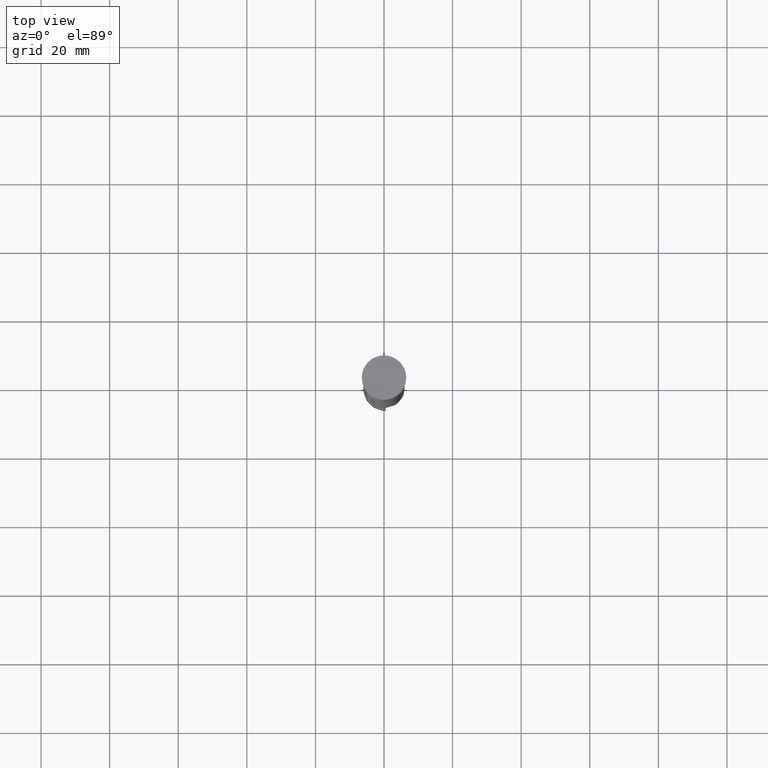
[diagram: clean part render]
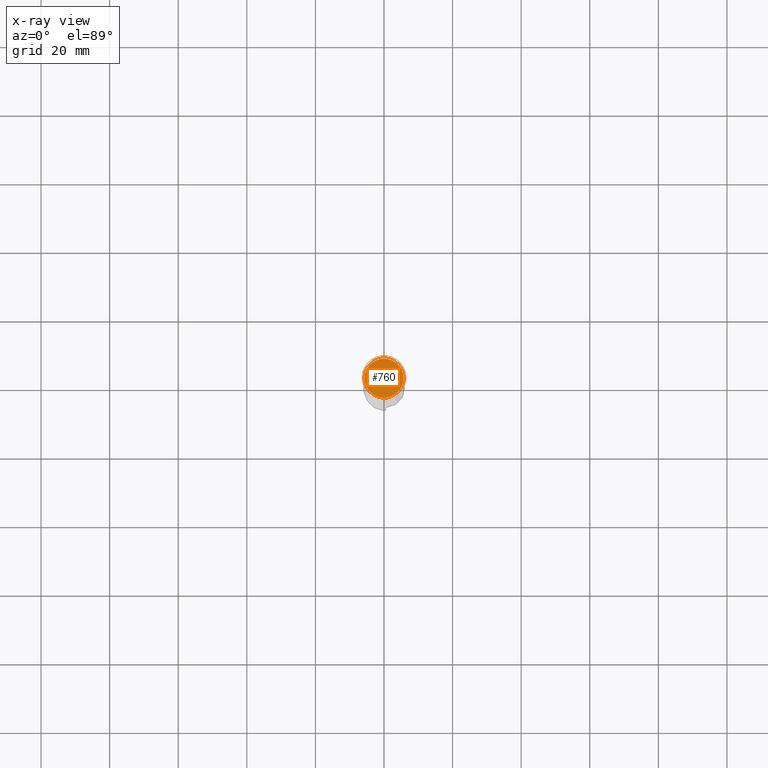
[diagram: x-ray — body ghosted, one internal face saturated and labeled with its STEP entity id]
A machine part, top view, then the same camera in x-ray: the body is ghosted and one INTERNAL B-rep face — a face not visible from any outside direction — is saturated and labeled: STEP entity #760.
In plain terms, the highlighted planar face has unit normal (0, 0, -1).
Its self-contained STEP definition (entity closure, byte-faithful):
#6 = DIRECTION ( 'NONE',  ( -0.000000000000000000, -0.000000000000000000, 1.000000000000000000 ) ) ;
#41 = DIRECTION ( 'NONE',  ( -1.000000000000000000, 0.000000000000000000, 0.000000000000000000 ) ) ;
#60 = CARTESIAN_POINT ( 'NONE',  ( -5.700000000000002842, 0.000000000000000000, -10.50000000000000178 ) ) ;
#132 = CARTESIAN_POINT ( 'NONE',  ( 0.000000000000000000, 0.000000000000000000, -10.50000000000000178 ) ) ;
#259 = AXIS2_PLACEMENT_3D ( 'NONE', #132, #1900, #1919 ) ;
#302 = PLANE ( 'NONE',  #2517 ) ;
#352 = ORIENTED_EDGE ( 'NONE', *, *, #3073, .T. ) ;
#443 = CARTESIAN_POINT ( 'NONE',  ( 5.700000000000002842, 7.164183775012019380E-16, -10.50000000000000178 ) ) ;
#696 = EDGE_LOOP ( 'NONE', ( #352, #2952 ) ) ;
#760 = ADVANCED_FACE ( 'NONE', ( #930 ), #302, .F. ) ;
#777 = EDGE_CURVE ( 'NONE', #2204, #821, #3087, .T. ) ;
#821 = VERTEX_POINT ( 'NONE', #60 ) ;
#930 = FACE_OUTER_BOUND ( 'NONE', #696, .T. ) ;
#1209 = CARTESIAN_POINT ( 'NONE',  ( 0.000000000000000000, 0.000000000000000000, -10.50000000000000178 ) ) ;
#1450 = CIRCLE ( 'NONE', #259, 5.700000000000002842 ) ;
#1900 = DIRECTION ( 'NONE',  ( -0.000000000000000000, -0.000000000000000000, 1.000000000000000000 ) ) ;
#1919 = DIRECTION ( 'NONE',  ( -1.000000000000000000, 0.000000000000000000, 0.000000000000000000 ) ) ;
#2089 = DIRECTION ( 'NONE',  ( 0.000000000000000000, 0.000000000000000000, -1.000000000000000000 ) ) ;
#2204 = VERTEX_POINT ( 'NONE', #443 ) ;
#2479 = DIRECTION ( 'NONE',  ( -1.000000000000000000, 0.000000000000000000, -0.000000000000000000 ) ) ;
#2517 = AXIS2_PLACEMENT_3D ( 'NONE', #1209, #2089, #2479 ) ;
#2952 = ORIENTED_EDGE ( 'NONE', *, *, #777, .T. ) ;
#3073 = EDGE_CURVE ( 'NONE', #821, #2204, #1450, .T. ) ;
#3087 = CIRCLE ( 'NONE', #3841, 5.700000000000002842 ) ;
#3687 = CARTESIAN_POINT ( 'NONE',  ( 0.000000000000000000, 0.000000000000000000, -10.50000000000000178 ) ) ;
#3841 = AXIS2_PLACEMENT_3D ( 'NONE', #3687, #6, #41 ) ;